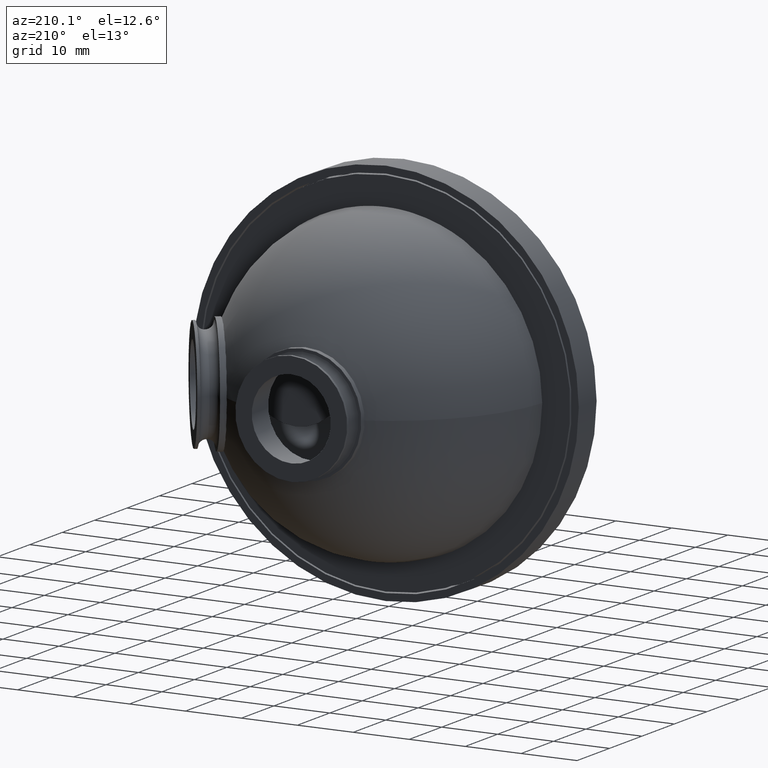
[diagram: clean part render]
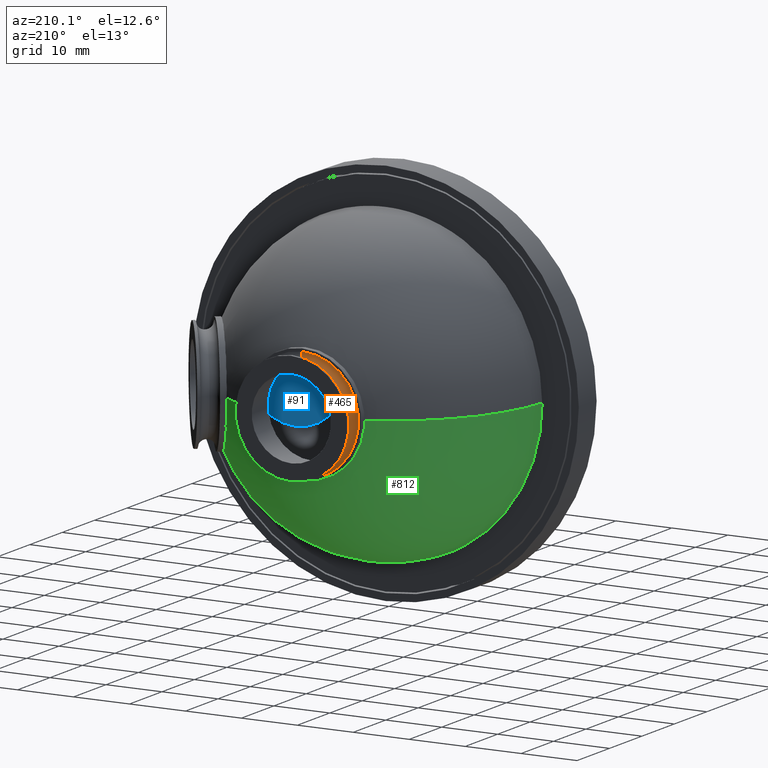
[diagram: same view with three faces highlighted in distinct colors, each labeled with its STEP entity id]
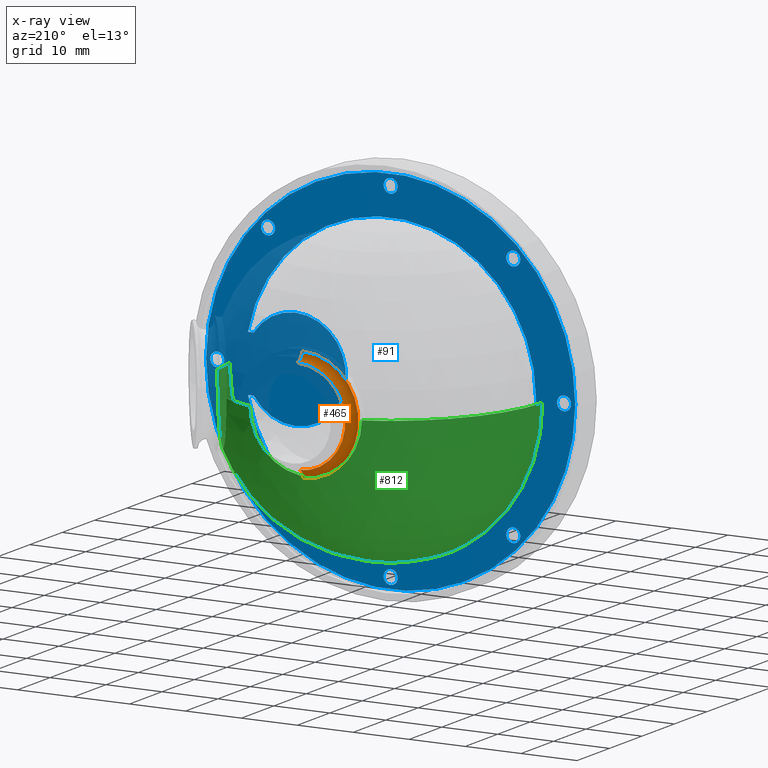
[diagram: x-ray of the same camera — body ghosted, the three highlighted faces saturated]
A machine part, auxiliary view with three faces highlighted in distinct colors.
The next image is the same camera in x-ray (body ghosted, the three faces saturated) — at least one of them is partly hidden behind the body in this view.
Their STEP definitions:

[orange] entity #465 — the highlighted toroidal blend (fillet) surface has major radius 10 mm and minor (blend) radius 1.5 mm.
#192 = VERTEX_POINT ( 'NONE', #2502 ) ;
#228 = VERTEX_POINT ( 'NONE', #3505 ) ;
#246 = DIRECTION ( 'NONE',  ( -0.009068317349353767487, 0.000000000000000000, -0.9999588819648792537 ) ) ;
#249 = CIRCLE ( 'NONE', #1227, 10.00000000000000000 ) ;
#340 = ORIENTED_EDGE ( 'NONE', *, *, #2190, .T. ) ;
#372 = DIRECTION ( 'NONE',  ( -0.009068317349354280965, -3.388295796307424955E-17, -0.9999588819648793647 ) ) ;
#465 = ADVANCED_FACE ( 'NONE', ( #1535 ), #2458, .F. ) ;
#701 = DIRECTION ( 'NONE',  ( 3.736410698672516088E-15, -1.000000000000000000, -1.067735561168283557E-29 ) ) ;
#707 = ORIENTED_EDGE ( 'NONE', *, *, #1647, .T. ) ;
#805 = VERTEX_POINT ( 'NONE', #1584 ) ;
#861 = CIRCLE ( 'NONE', #3348, 1.500000000000001998 ) ;
#1020 = CARTESIAN_POINT ( 'NONE',  ( 8.484018949608200799, 10.74252777405984460, -1.601603341752422533E-29 ) ) ;
#1028 = ORIENTED_EDGE ( 'NONE', *, *, #1835, .F. ) ;
#1134 = CARTESIAN_POINT ( 'NONE',  ( 8.484018949608207905, 9.242527774059841050, -3.203206683504850110E-29 ) ) ;
#1227 = AXIS2_PLACEMENT_3D ( 'NONE', #1134, #3404, #2288 ) ;
#1268 = DIRECTION ( 'NONE',  ( 1.000000000000000000, 3.673532066774416369E-15, 0.000000000000000000 ) ) ;
#1294 = ORIENTED_EDGE ( 'NONE', *, *, #3018, .F. ) ;
#1535 = FACE_OUTER_BOUND ( 'NONE', #1846, .T. ) ;
#1582 = DIRECTION ( 'NONE',  ( 0.009068317349353767487, 0.000000000000000000, 0.9999588819648792537 ) ) ;
#1584 = CARTESIAN_POINT ( 'NONE',  ( 8.406938252138688838, 10.74252777405984460, -8.499650496701471880 ) ) ;
#1610 = CARTESIAN_POINT ( 'NONE',  ( 8.484018949608200799, 10.74252777405984460, -1.601603341752422253E-29 ) ) ;
#1647 = EDGE_CURVE ( 'NONE', #3008, #805, #2695, .T. ) ;
#1781 = CIRCLE ( 'NONE', #1898, 1.500000000000001998 ) ;
#1835 = EDGE_CURVE ( 'NONE', #192, #228, #249, .T. ) ;
#1846 = EDGE_LOOP ( 'NONE', ( #340, #707, #1294, #1028 ) ) ;
#1885 = DIRECTION ( 'NONE',  ( -0.9999588819648794757, -3.736257064806183412E-15, 0.009068317349354218515 ) ) ;
#1898 = AXIS2_PLACEMENT_3D ( 'NONE', #2228, #2244, #246 ) ;
#2166 = CARTESIAN_POINT ( 'NONE',  ( 8.561099647077712760, 10.74252777405984460, 8.499650496701471880 ) ) ;
#2172 = DIRECTION ( 'NONE',  ( 3.736410698672516088E-15, -1.000000000000000000, -1.067735561168283557E-29 ) ) ;
#2190 = EDGE_CURVE ( 'NONE', #192, #3008, #1781, .T. ) ;
#2228 = CARTESIAN_POINT ( 'NONE',  ( 8.574702123101744178, 10.74252777405984460, 9.999588819648794313 ) ) ;
#2244 = DIRECTION ( 'NONE',  ( 0.9999588819648794757, 3.736257064806183412E-15, -0.009068317349354341680 ) ) ;
#2288 = DIRECTION ( 'NONE',  ( 0.009068317349354183821, 0.000000000000000000, 0.9999588819648794757 ) ) ;
#2331 = AXIS2_PLACEMENT_3D ( 'NONE', #1610, #701, #1268 ) ;
#2458 = TOROIDAL_SURFACE ( 'NONE', #2581, 10.00000000000000000, 1.500000000000002442 ) ;
#2502 = CARTESIAN_POINT ( 'NONE',  ( 8.574702123101749507, 9.242527774059841050, 9.999588819648794313 ) ) ;
#2581 = AXIS2_PLACEMENT_3D ( 'NONE', #1020, #2172, #372 ) ;
#2695 = CIRCLE ( 'NONE', #2331, 8.499999999999996447 ) ;
#3008 = VERTEX_POINT ( 'NONE', #2166 ) ;
#3018 = EDGE_CURVE ( 'NONE', #228, #805, #861, .T. ) ;
#3334 = CARTESIAN_POINT ( 'NONE',  ( 8.393335776114659197, 10.74252777405984460, -9.999588819648794313 ) ) ;
#3348 = AXIS2_PLACEMENT_3D ( 'NONE', #3334, #1885, #1582 ) ;
#3404 = DIRECTION ( 'NONE',  ( 3.736410698672516088E-15, -1.000000000000000000, -1.067735561168283557E-29 ) ) ;
#3505 = CARTESIAN_POINT ( 'NONE',  ( 8.393335776114664526, 9.242527774059841050, -9.999588819648794313 ) ) ;

[blue] entity #91 — the highlighted planar face has unit normal (0, 1, 0).
#20 = EDGE_CURVE ( 'NONE', #637, #2254, #3038, .T. ) ;
#24 = FACE_OUTER_BOUND ( 'NONE', #3511, .T. ) ;
#31 = VERTEX_POINT ( 'NONE', #2931 ) ;
#67 = CARTESIAN_POINT ( 'NONE',  ( -21.26598105039162689, -17.91086588718419392, -2.896232705858444703E-13 ) ) ;
#91 = ADVANCED_FACE ( 'NONE', ( #1489, #1769, #2870, #305, #264, #1430, #3759, #1145, #24, #905 ), #2296, .T. ) ;
#108 = AXIS2_PLACEMENT_3D ( 'NONE', #936, #1856, #665 ) ;
#119 = EDGE_CURVE ( 'NONE', #572, #1543, #1066, .T. ) ;
#161 = AXIS2_PLACEMENT_3D ( 'NONE', #3083, #2735, #3006 ) ;
#170 = AXIS2_PLACEMENT_3D ( 'NONE', #1386, #2253, #3409 ) ;
#195 = DIRECTION ( 'NONE',  ( 0.000000000000000000, 1.000000000000000000, 0.000000000000000000 ) ) ;
#232 = CARTESIAN_POINT ( 'NONE',  ( 7.234018949608225668, -17.91086588718419392, 30.99999999999994671 ) ) ;
#238 = CIRCLE ( 'NONE', #3043, 1.250000000000001110 ) ;
#264 = FACE_BOUND ( 'NONE', #2920, .T. ) ;
#276 = VERTEX_POINT ( 'NONE', #67 ) ;
#289 = EDGE_CURVE ( 'NONE', #276, #3544, #951, .T. ) ;
#303 = EDGE_CURVE ( 'NONE', #1450, #2607, #2824, .T. ) ;
#305 = FACE_BOUND ( 'NONE', #2463, .T. ) ;
#316 = CARTESIAN_POINT ( 'NONE',  ( 32.96733372315623001, -17.91086588718419392, 5.000000000000071942 ) ) ;
#326 = ORIENTED_EDGE ( 'NONE', *, *, #3719, .T. ) ;
#334 = EDGE_CURVE ( 'NONE', #1037, #1495, #3010, .T. ) ;
#347 = CIRCLE ( 'NONE', #161, 1.250000000000001110 ) ;
#393 = AXIS2_PLACEMENT_3D ( 'NONE', #2186, #3126, #1925 ) ;
#428 = VERTEX_POINT ( 'NONE', #1302 ) ;
#449 = CARTESIAN_POINT ( 'NONE',  ( -23.76598105039163045, -17.91086588718419392, -3.013746916115605945E-13 ) ) ;
#456 = AXIS2_PLACEMENT_3D ( 'NONE', #1502, #1463, #3197 ) ;
#489 = DIRECTION ( 'NONE',  ( 0.000000000000000000, 1.000000000000000000, 0.000000000000000000 ) ) ;
#491 = DIRECTION ( 'NONE',  ( 0.000000000000000000, 1.000000000000000000, 0.000000000000000000 ) ) ;
#502 = CIRCLE ( 'NONE', #1287, 1.250000000000001110 ) ;
#530 = EDGE_CURVE ( 'NONE', #950, #2516, #2952, .T. ) ;
#543 = CARTESIAN_POINT ( 'NONE',  ( -24.51598105039163045, -17.91086588718419392, -1.925768750327302926E-13 ) ) ;
#568 = EDGE_CURVE ( 'NONE', #2129, #1350, #897, .T. ) ;
#572 = VERTEX_POINT ( 'NONE', #232 ) ;
#596 = EDGE_LOOP ( 'NONE', ( #976, #2431 ) ) ;
#604 = CARTESIAN_POINT ( 'NONE',  ( 33.99872059395449497, -17.91086588718419392, 5.000000000000074607 ) ) ;
#608 = CARTESIAN_POINT ( 'NONE',  ( 30.40432916639163352, -17.91086588718419392, -21.92031021678273106 ) ) ;
#637 = VERTEX_POINT ( 'NONE', #3210 ) ;
#653 = CARTESIAN_POINT ( 'NONE',  ( 9.734018949608731930, -17.91086588718419392, -31.00000000000003908 ) ) ;
#665 = DIRECTION ( 'NONE',  ( -1.000000000000000000, 0.000000000000000000, -5.551115123125777969E-15 ) ) ;
#668 = VERTEX_POINT ( 'NONE', #604 ) ;
#691 = ORIENTED_EDGE ( 'NONE', *, *, #2821, .F. ) ;
#766 = EDGE_CURVE ( 'NONE', #3493, #2532, #814, .T. ) ;
#799 = DIRECTION ( 'NONE',  ( -1.000000000000000000, 0.000000000000000000, -5.551115123125777969E-15 ) ) ;
#800 = CARTESIAN_POINT ( 'NONE',  ( -14.68629126717439171, -17.91086588718419392, -21.92031021678324265 ) ) ;
#811 = EDGE_LOOP ( 'NONE', ( #1466, #3522 ) ) ;
#814 = CIRCLE ( 'NONE', #1291, 1.250000000000001110 ) ;
#862 = ORIENTED_EDGE ( 'NONE', *, *, #289, .F. ) ;
#863 = DIRECTION ( 'NONE',  ( -1.000000000000000000, 0.000000000000000000, -4.639336070329089976E-15 ) ) ;
#879 = DIRECTION ( 'NONE',  ( -4.625929269271485322E-15, 0.000000000000000000, 1.000000000000000000 ) ) ;
#897 = CIRCLE ( 'NONE', #2275, 1.250000000000001110 ) ;
#905 = FACE_BOUND ( 'NONE', #2951, .T. ) ;
#915 = CIRCLE ( 'NONE', #2360, 1.250000000000001110 ) ;
#936 = CARTESIAN_POINT ( 'NONE',  ( 30.40432916639163352, -17.91086588718419392, -21.92031021678273106 ) ) ;
#940 = ORIENTED_EDGE ( 'NONE', *, *, #2483, .F. ) ;
#950 = VERTEX_POINT ( 'NONE', #1926 ) ;
#951 = CIRCLE ( 'NONE', #456, 1.250000000000001110 ) ;
#975 = EDGE_CURVE ( 'NONE', #2532, #3493, #502, .T. ) ;
#976 = ORIENTED_EDGE ( 'NONE', *, *, #3157, .F. ) ;
#1037 = VERTEX_POINT ( 'NONE', #3184 ) ;
#1051 = DIRECTION ( 'NONE',  ( 0.000000000000000000, 1.000000000000000000, 0.000000000000000000 ) ) ;
#1066 = CIRCLE ( 'NONE', #1671, 1.250000000000001110 ) ;
#1075 = EDGE_LOOP ( 'NONE', ( #2652, #1562 ) ) ;
#1145 = FACE_BOUND ( 'NONE', #2753, .T. ) ;
#1167 = EDGE_CURVE ( 'NONE', #1350, #2129, #347, .T. ) ;
#1183 = AXIS2_PLACEMENT_3D ( 'NONE', #1764, #2623, #2085 ) ;
#1211 = AXIS2_PLACEMENT_3D ( 'NONE', #3003, #2659, #1559 ) ;
#1266 = CIRCLE ( 'NONE', #108, 1.250000000000001110 ) ;
#1287 = AXIS2_PLACEMENT_3D ( 'NONE', #2549, #1319, #2187 ) ;
#1291 = AXIS2_PLACEMENT_3D ( 'NONE', #2904, #3500, #2046 ) ;
#1293 = CARTESIAN_POINT ( 'NONE',  ( 32.96733372315628685, -17.91086588718419392, -4.999999999999928058 ) ) ;
#1302 = CARTESIAN_POINT ( 'NONE',  ( 31.65432916639097982, -17.91086588718419392, 21.92031021678329594 ) ) ;
#1311 = LINE ( 'NONE', #1293, #1377 ) ;
#1317 = EDGE_CURVE ( 'NONE', #1495, #668, #1954, .T. ) ;
#1319 = DIRECTION ( 'NONE',  ( 0.000000000000000000, 1.000000000000000000, 0.000000000000000000 ) ) ;
#1350 = VERTEX_POINT ( 'NONE', #800 ) ;
#1377 = VECTOR ( 'NONE', #2095, 1000.000000000000000 ) ;
#1381 = CARTESIAN_POINT ( 'NONE',  ( 41.48401894960837666, -17.91086588718419392, 1.095779711718033954E-13 ) ) ;
#1386 = CARTESIAN_POINT ( 'NONE',  ( 39.48401894960837666, -17.91086588718419392, 4.250072516143177381E-13 ) ) ;
#1392 = CARTESIAN_POINT ( 'NONE',  ( -12.18629126717438815, -17.91086588718419392, -21.92031021678322844 ) ) ;
#1398 = ORIENTED_EDGE ( 'NONE', *, *, #334, .T. ) ;
#1430 = FACE_BOUND ( 'NONE', #3430, .T. ) ;
#1446 = CARTESIAN_POINT ( 'NONE',  ( 32.96733372315623001, -17.91086588718419392, 5.000000000000071942 ) ) ;
#1449 = EDGE_CURVE ( 'NONE', #2516, #950, #2880, .T. ) ;
#1450 = VERTEX_POINT ( 'NONE', #2965 ) ;
#1463 = DIRECTION ( 'NONE',  ( 0.000000000000000000, 1.000000000000000000, 0.000000000000000000 ) ) ;
#1466 = ORIENTED_EDGE ( 'NONE', *, *, #3294, .F. ) ;
#1489 = FACE_BOUND ( 'NONE', #596, .T. ) ;
#1491 = CIRCLE ( 'NONE', #3248, 26.00000000000000355 ) ;
#1495 = VERTEX_POINT ( 'NONE', #316 ) ;
#1502 = CARTESIAN_POINT ( 'NONE',  ( -22.51598105039163045, -17.91086588718419392, -2.955755215236492071E-13 ) ) ;
#1543 = VERTEX_POINT ( 'NONE', #2102 ) ;
#1559 = DIRECTION ( 'NONE',  ( -1.000000000000000000, 0.000000000000000000, -5.551115123125777969E-15 ) ) ;
#1561 = ORIENTED_EDGE ( 'NONE', *, *, #1317, .T. ) ;
#1562 = ORIENTED_EDGE ( 'NONE', *, *, #1449, .F. ) ;
#1612 = DIRECTION ( 'NONE',  ( -1.000000000000000000, 0.000000000000000000, -4.639336070329089976E-15 ) ) ;
#1646 = DIRECTION ( 'NONE',  ( -1.000000000000000000, 0.000000000000000000, -4.639336070329089976E-15 ) ) ;
#1657 = CIRCLE ( 'NONE', #2960, 1.250000000000001110 ) ;
#1661 = DIRECTION ( 'NONE',  ( -1.000000000000000000, 0.000000000000000000, -4.639336070329089187E-15 ) ) ;
#1671 = AXIS2_PLACEMENT_3D ( 'NONE', #1989, #2010, #799 ) ;
#1687 = DIRECTION ( 'NONE',  ( 1.000000000000000000, 0.000000000000000000, 4.639336070329089976E-15 ) ) ;
#1764 = CARTESIAN_POINT ( 'NONE',  ( -13.43629126717474342, -17.91086588718419392, 21.92031021678278790 ) ) ;
#1769 = FACE_BOUND ( 'NONE', #1834, .T. ) ;
#1834 = EDGE_LOOP ( 'NONE', ( #2421, #3476 ) ) ;
#1856 = DIRECTION ( 'NONE',  ( 0.000000000000000000, 1.000000000000000000, 0.000000000000000000 ) ) ;
#1894 = CARTESIAN_POINT ( 'NONE',  ( 8.484018949608371329, -17.91086588718419392, -4.352011914905657226E-14 ) ) ;
#1913 = CARTESIAN_POINT ( 'NONE',  ( 7.234018949608730153, -17.91086588718419392, -31.00000000000005329 ) ) ;
#1925 = DIRECTION ( 'NONE',  ( -1.000000000000000000, 0.000000000000000000, -4.639336070329089976E-15 ) ) ;
#1926 = CARTESIAN_POINT ( 'NONE',  ( -14.68629126717474520, -17.91086588718419392, 21.92031021678278080 ) ) ;
#1954 = LINE ( 'NONE', #1446, #2108 ) ;
#1989 = CARTESIAN_POINT ( 'NONE',  ( 8.484018949608225668, -17.91086588718419392, 30.99999999999995381 ) ) ;
#2010 = DIRECTION ( 'NONE',  ( 0.000000000000000000, 1.000000000000000000, 0.000000000000000000 ) ) ;
#2046 = DIRECTION ( 'NONE',  ( -1.000000000000000000, 0.000000000000000000, -5.551115123125777969E-15 ) ) ;
#2054 = DIRECTION ( 'NONE',  ( 0.000000000000000000, 1.000000000000000000, 0.000000000000000000 ) ) ;
#2056 = CARTESIAN_POINT ( 'NONE',  ( 8.484018949608371329, -17.91086588718419392, -4.352011914905657226E-14 ) ) ;
#2068 = DIRECTION ( 'NONE',  ( 0.000000000000000000, 1.000000000000000000, 0.000000000000000000 ) ) ;
#2085 = DIRECTION ( 'NONE',  ( -1.000000000000000000, 0.000000000000000000, -5.551115123125777969E-15 ) ) ;
#2095 = DIRECTION ( 'NONE',  ( 1.000000000000000000, 0.000000000000000000, 4.639336070329089976E-15 ) ) ;
#2102 = CARTESIAN_POINT ( 'NONE',  ( 9.734018949608227445, -17.91086588718419392, 30.99999999999996092 ) ) ;
#2108 = VECTOR ( 'NONE', #1687, 1000.000000000000000 ) ;
#2129 = VERTEX_POINT ( 'NONE', #1392 ) ;
#2186 = CARTESIAN_POINT ( 'NONE',  ( 8.484018949608371329, -17.91086588718419392, -4.352011914905657226E-14 ) ) ;
#2187 = DIRECTION ( 'NONE',  ( -1.000000000000000000, 0.000000000000000000, -5.551115123125777969E-15 ) ) ;
#2200 = DIRECTION ( 'NONE',  ( -1.000000000000000000, 0.000000000000000000, -4.639336070329089187E-15 ) ) ;
#2232 = CARTESIAN_POINT ( 'NONE',  ( -13.43629126717438993, -17.91086588718419392, -21.92031021678323555 ) ) ;
#2247 = DIRECTION ( 'NONE',  ( -1.000000000000000000, 0.000000000000000000, -5.551115123125777969E-15 ) ) ;
#2253 = DIRECTION ( 'NONE',  ( 0.000000000000000000, 1.000000000000000000, 0.000000000000000000 ) ) ;
#2254 = VERTEX_POINT ( 'NONE', #2799 ) ;
#2275 = AXIS2_PLACEMENT_3D ( 'NONE', #2232, #195, #2857 ) ;
#2296 = PLANE ( 'NONE',  #3159 ) ;
#2300 = DIRECTION ( 'NONE',  ( -1.000000000000000000, 0.000000000000000000, -5.551115123125777969E-15 ) ) ;
#2304 = EDGE_CURVE ( 'NONE', #428, #31, #1657, .T. ) ;
#2344 = AXIS2_PLACEMENT_3D ( 'NONE', #2840, #489, #2247 ) ;
#2360 = AXIS2_PLACEMENT_3D ( 'NONE', #3110, #2901, #1661 ) ;
#2365 = AXIS2_PLACEMENT_3D ( 'NONE', #2794, #1051, #2200 ) ;
#2368 = ORIENTED_EDGE ( 'NONE', *, *, #3346, .F. ) ;
#2370 = DIRECTION ( 'NONE',  ( -1.000000000000000000, 0.000000000000000000, -5.551115123125777969E-15 ) ) ;
#2421 = ORIENTED_EDGE ( 'NONE', *, *, #2622, .F. ) ;
#2431 = ORIENTED_EDGE ( 'NONE', *, *, #2304, .F. ) ;
#2463 = EDGE_LOOP ( 'NONE', ( #3330, #3145 ) ) ;
#2483 = EDGE_CURVE ( 'NONE', #1037, #3087, #1311, .T. ) ;
#2516 = VERTEX_POINT ( 'NONE', #3587 ) ;
#2520 = AXIS2_PLACEMENT_3D ( 'NONE', #3540, #2068, #879 ) ;
#2532 = VERTEX_POINT ( 'NONE', #653 ) ;
#2549 = CARTESIAN_POINT ( 'NONE',  ( 8.484018949608731930, -17.91086588718419392, -31.00000000000004619 ) ) ;
#2580 = ORIENTED_EDGE ( 'NONE', *, *, #3472, .T. ) ;
#2607 = VERTEX_POINT ( 'NONE', #3700 ) ;
#2622 = EDGE_CURVE ( 'NONE', #2254, #637, #3772, .T. ) ;
#2623 = DIRECTION ( 'NONE',  ( 0.000000000000000000, 1.000000000000000000, 0.000000000000000000 ) ) ;
#2652 = ORIENTED_EDGE ( 'NONE', *, *, #530, .F. ) ;
#2659 = DIRECTION ( 'NONE',  ( 0.000000000000000000, 1.000000000000000000, 0.000000000000000000 ) ) ;
#2726 = CIRCLE ( 'NONE', #1211, 1.250000000000001110 ) ;
#2735 = DIRECTION ( 'NONE',  ( 0.000000000000000000, 1.000000000000000000, 0.000000000000000000 ) ) ;
#2753 = EDGE_LOOP ( 'NONE', ( #3656, #2368 ) ) ;
#2794 = CARTESIAN_POINT ( 'NONE',  ( 39.48401894960837666, -17.91086588718419392, 4.250072516143177381E-13 ) ) ;
#2799 = CARTESIAN_POINT ( 'NONE',  ( 38.23401894960836955, -17.91086588718419392, 4.192080815264063508E-13 ) ) ;
#2812 = VERTEX_POINT ( 'NONE', #543 ) ;
#2821 = EDGE_CURVE ( 'NONE', #3544, #276, #915, .T. ) ;
#2824 = CIRCLE ( 'NONE', #3317, 1.250000000000001110 ) ;
#2840 = CARTESIAN_POINT ( 'NONE',  ( -13.43629126717474342, -17.91086588718419392, 21.92031021678278790 ) ) ;
#2857 = DIRECTION ( 'NONE',  ( -1.000000000000000000, 0.000000000000000000, -5.551115123125777969E-15 ) ) ;
#2870 = FACE_BOUND ( 'NONE', #811, .T. ) ;
#2877 = CARTESIAN_POINT ( 'NONE',  ( 30.40432916639097627, -17.91086588718419392, 21.92031021678328884 ) ) ;
#2880 = CIRCLE ( 'NONE', #1183, 1.250000000000001110 ) ;
#2892 = CARTESIAN_POINT ( 'NONE',  ( 30.40432916639097627, -17.91086588718419392, 21.92031021678328884 ) ) ;
#2901 = DIRECTION ( 'NONE',  ( 0.000000000000000000, 1.000000000000000000, 0.000000000000000000 ) ) ;
#2904 = CARTESIAN_POINT ( 'NONE',  ( 8.484018949608731930, -17.91086588718419392, -31.00000000000004619 ) ) ;
#2910 = DIRECTION ( 'NONE',  ( -1.000000000000000000, 0.000000000000000000, -5.551115123125777969E-15 ) ) ;
#2920 = EDGE_LOOP ( 'NONE', ( #3188, #3319 ) ) ;
#2925 = DIRECTION ( 'NONE',  ( 0.000000000000000000, 1.000000000000000000, 0.000000000000000000 ) ) ;
#2931 = CARTESIAN_POINT ( 'NONE',  ( 29.15432916639097272, -17.91086588718419392, 21.92031021678328173 ) ) ;
#2951 = EDGE_LOOP ( 'NONE', ( #1561, #3064, #940, #1398 ) ) ;
#2952 = CIRCLE ( 'NONE', #2344, 1.250000000000001110 ) ;
#2960 = AXIS2_PLACEMENT_3D ( 'NONE', #2877, #3547, #2300 ) ;
#2965 = CARTESIAN_POINT ( 'NONE',  ( 31.65432916639162997, -17.91086588718419392, -21.92031021678272396 ) ) ;
#3003 = CARTESIAN_POINT ( 'NONE',  ( 8.484018949608225668, -17.91086588718419392, 30.99999999999995381 ) ) ;
#3006 = DIRECTION ( 'NONE',  ( -1.000000000000000000, 0.000000000000000000, -5.551115123125777969E-15 ) ) ;
#3010 = CIRCLE ( 'NONE', #2520, 9.000000000000000000 ) ;
#3038 = CIRCLE ( 'NONE', #2365, 1.250000000000001110 ) ;
#3043 = AXIS2_PLACEMENT_3D ( 'NONE', #2892, #2054, #2910 ) ;
#3049 = CARTESIAN_POINT ( 'NONE',  ( 33.99872059395455182, -17.91086588718419392, -4.999999999999924505 ) ) ;
#3064 = ORIENTED_EDGE ( 'NONE', *, *, #3568, .F. ) ;
#3082 = DIRECTION ( 'NONE',  ( 0.000000000000000000, 1.000000000000000000, 0.000000000000000000 ) ) ;
#3083 = CARTESIAN_POINT ( 'NONE',  ( -13.43629126717438993, -17.91086588718419392, -21.92031021678323555 ) ) ;
#3087 = VERTEX_POINT ( 'NONE', #3049 ) ;
#3097 = CARTESIAN_POINT ( 'NONE',  ( 8.484018949608371329, -17.91086588718419392, -4.352011914905657226E-14 ) ) ;
#3110 = CARTESIAN_POINT ( 'NONE',  ( -22.51598105039163045, -17.91086588718419392, -2.955755215236492071E-13 ) ) ;
#3126 = DIRECTION ( 'NONE',  ( 0.000000000000000000, 1.000000000000000000, 0.000000000000000000 ) ) ;
#3129 = AXIS2_PLACEMENT_3D ( 'NONE', #1894, #3082, #1612 ) ;
#3145 = ORIENTED_EDGE ( 'NONE', *, *, #975, .F. ) ;
#3157 = EDGE_CURVE ( 'NONE', #31, #428, #238, .T. ) ;
#3159 = AXIS2_PLACEMENT_3D ( 'NONE', #2056, #3470, #863 ) ;
#3184 = CARTESIAN_POINT ( 'NONE',  ( 32.96733372315628685, -17.91086588718419392, -4.999999999999928058 ) ) ;
#3188 = ORIENTED_EDGE ( 'NONE', *, *, #1167, .F. ) ;
#3197 = DIRECTION ( 'NONE',  ( -1.000000000000000000, 0.000000000000000000, -4.639336070329089187E-15 ) ) ;
#3210 = CARTESIAN_POINT ( 'NONE',  ( 40.73401894960837666, -17.91086588718419392, 4.309595025521225255E-13 ) ) ;
#3248 = AXIS2_PLACEMENT_3D ( 'NONE', #3097, #491, #1646 ) ;
#3294 = EDGE_CURVE ( 'NONE', #2607, #1450, #1266, .T. ) ;
#3317 = AXIS2_PLACEMENT_3D ( 'NONE', #608, #2925, #2370 ) ;
#3319 = ORIENTED_EDGE ( 'NONE', *, *, #568, .F. ) ;
#3330 = ORIENTED_EDGE ( 'NONE', *, *, #766, .F. ) ;
#3346 = EDGE_CURVE ( 'NONE', #1543, #572, #2726, .T. ) ;
#3401 = CIRCLE ( 'NONE', #3129, 33.00000000000000000 ) ;
#3409 = DIRECTION ( 'NONE',  ( -1.000000000000000000, 0.000000000000000000, -4.639336070329089187E-15 ) ) ;
#3430 = EDGE_LOOP ( 'NONE', ( #691, #862 ) ) ;
#3470 = DIRECTION ( 'NONE',  ( 0.000000000000000000, 1.000000000000000000, 0.000000000000000000 ) ) ;
#3472 = EDGE_CURVE ( 'NONE', #2812, #3570, #3401, .T. ) ;
#3476 = ORIENTED_EDGE ( 'NONE', *, *, #20, .F. ) ;
#3493 = VERTEX_POINT ( 'NONE', #1913 ) ;
#3500 = DIRECTION ( 'NONE',  ( 0.000000000000000000, 1.000000000000000000, 0.000000000000000000 ) ) ;
#3511 = EDGE_LOOP ( 'NONE', ( #326, #2580 ) ) ;
#3522 = ORIENTED_EDGE ( 'NONE', *, *, #303, .F. ) ;
#3540 = CARTESIAN_POINT ( 'NONE',  ( 25.48401894960837311, -17.91086588718419392, 3.534859404653798100E-14 ) ) ;
#3544 = VERTEX_POINT ( 'NONE', #449 ) ;
#3547 = DIRECTION ( 'NONE',  ( 0.000000000000000000, 1.000000000000000000, 0.000000000000000000 ) ) ;
#3568 = EDGE_CURVE ( 'NONE', #3087, #668, #1491, .T. ) ;
#3570 = VERTEX_POINT ( 'NONE', #1381 ) ;
#3587 = CARTESIAN_POINT ( 'NONE',  ( -12.18629126717474165, -17.91086588718419392, 21.92031021678279501 ) ) ;
#3656 = ORIENTED_EDGE ( 'NONE', *, *, #119, .F. ) ;
#3678 = CIRCLE ( 'NONE', #393, 33.00000000000000000 ) ;
#3700 = CARTESIAN_POINT ( 'NONE',  ( 29.15432916639163352, -17.91086588718419392, -21.92031021678273817 ) ) ;
#3719 = EDGE_CURVE ( 'NONE', #3570, #2812, #3678, .T. ) ;
#3759 = FACE_BOUND ( 'NONE', #1075, .T. ) ;
#3772 = CIRCLE ( 'NONE', #170, 1.250000000000001110 ) ;

[green] entity #812 — the highlighted spherical surface has radius 28 mm.
#88 = AXIS2_PLACEMENT_3D ( 'NONE', #1421, #1138, #3175 ) ;
#98 = VERTEX_POINT ( 'NONE', #200 ) ;
#151 = AXIS2_PLACEMENT_3D ( 'NONE', #1283, #3613, #2767 ) ;
#182 = EDGE_CURVE ( 'NONE', #98, #3680, #2889, .T. ) ;
#200 = CARTESIAN_POINT ( 'NONE',  ( 35.75809397930994038, -11.57644947569009020, 0.000000000000000000 ) ) ;
#253 = VERTEX_POINT ( 'NONE', #279 ) ;
#279 = CARTESIAN_POINT ( 'NONE',  ( -1.515981050391789209, 8.242527774059805523, 2.324366922747028344E-15 ) ) ;
#318 = CIRCLE ( 'NONE', #2137, 27.95979256003163016 ) ;
#381 = AXIS2_PLACEMENT_3D ( 'NONE', #732, #2381, #426 ) ;
#426 = DIRECTION ( 'NONE',  ( 1.000000000000000000, 0.000000000000000000, 0.000000000000000000 ) ) ;
#429 = AXIS2_PLACEMENT_3D ( 'NONE', #2201, #1902, #2454 ) ;
#453 = EDGE_CURVE ( 'NONE', #3026, #1844, #1915, .T. ) ;
#564 = DIRECTION ( 'NONE',  ( 1.224646799147353207E-16, -0.000000000000000000, 1.000000000000000000 ) ) ;
#600 = ORIENTED_EDGE ( 'NONE', *, *, #182, .T. ) ;
#639 = DIRECTION ( 'NONE',  ( -0.000000000000000000, 1.000000000000000000, -0.000000000000000000 ) ) ;
#681 = EDGE_CURVE ( 'NONE', #3680, #1388, #318, .T. ) ;
#693 = SPHERICAL_SURFACE ( 'NONE', #381, 28.00000000000000000 ) ;
#732 = CARTESIAN_POINT ( 'NONE',  ( 8.484018949608307381, -17.91086588718419748, 0.000000000000000000 ) ) ;
#735 = CIRCLE ( 'NONE', #429, 9.999999999999998224 ) ;
#812 = ADVANCED_FACE ( 'NONE', ( #1263 ), #693, .T. ) ;
#1049 = EDGE_CURVE ( 'NONE', #98, #1844, #2495, .T. ) ;
#1080 = CARTESIAN_POINT ( 'NONE',  ( 24.57423590989497697, 5.004301975410723635, 0.000000000000000000 ) ) ;
#1124 = ORIENTED_EDGE ( 'NONE', *, *, #3077, .T. ) ;
#1126 = CARTESIAN_POINT ( 'NONE',  ( 30.16616494460246045, -3.286073750139683280, 0.000000000000000000 ) ) ;
#1138 = DIRECTION ( 'NONE',  ( 0.000000000000000000, 0.000000000000000000, -1.000000000000000000 ) ) ;
#1154 = CARTESIAN_POINT ( 'NONE',  ( 8.484018949608307381, -16.41086588718419748, 0.000000000000000000 ) ) ;
#1166 = ORIENTED_EDGE ( 'NONE', *, *, #1049, .F. ) ;
#1262 = ORIENTED_EDGE ( 'NONE', *, *, #453, .T. ) ;
#1263 = FACE_OUTER_BOUND ( 'NONE', #2646, .T. ) ;
#1283 = CARTESIAN_POINT ( 'NONE',  ( 8.484018949608307381, -17.91086588718419748, 0.000000000000000000 ) ) ;
#1388 = VERTEX_POINT ( 'NONE', #1707 ) ;
#1421 = CARTESIAN_POINT ( 'NONE',  ( 8.484018949608307381, -17.91086588718419748, 0.000000000000000000 ) ) ;
#1472 = AXIS2_PLACEMENT_3D ( 'NONE', #1126, #1842, #3454 ) ;
#1588 = AXIS2_PLACEMENT_3D ( 'NONE', #1702, #564, #3441 ) ;
#1702 = CARTESIAN_POINT ( 'NONE',  ( 8.484018949608307381, -17.91086588718419748, 0.000000000000000000 ) ) ;
#1707 = CARTESIAN_POINT ( 'NONE',  ( -19.47577361042331745, -16.41086588718419748, 3.424087046346671680E-15 ) ) ;
#1816 = EDGE_CURVE ( 'NONE', #253, #1388, #1892, .T. ) ;
#1842 = DIRECTION ( 'NONE',  ( 0.8290375725550408470, 0.5591929034707481261, 0.000000000000000000 ) ) ;
#1844 = VERTEX_POINT ( 'NONE', #1080 ) ;
#1892 = CIRCLE ( 'NONE', #1588, 28.00000000000000000 ) ;
#1902 = DIRECTION ( 'NONE',  ( 3.736410698672603652E-15, -1.000000000000000000, -0.000000000000000000 ) ) ;
#1915 = CIRCLE ( 'NONE', #151, 28.00000000000000000 ) ;
#2024 = DIRECTION ( 'NONE',  ( 0.000000000000000000, 0.000000000000000000, -1.000000000000000000 ) ) ;
#2137 = AXIS2_PLACEMENT_3D ( 'NONE', #1154, #639, #2024 ) ;
#2201 = CARTESIAN_POINT ( 'NONE',  ( 8.484018949608211457, 8.242527774059842827, 0.000000000000000000 ) ) ;
#2381 = DIRECTION ( 'NONE',  ( 0.000000000000000000, 0.000000000000000000, 1.000000000000000000 ) ) ;
#2417 = ORIENTED_EDGE ( 'NONE', *, *, #681, .T. ) ;
#2454 = DIRECTION ( 'NONE',  ( 1.000000000000000000, 3.816391647148976397E-15, 0.000000000000000000 ) ) ;
#2495 = CIRCLE ( 'NONE', #1472, 10.00000000000000000 ) ;
#2510 = ORIENTED_EDGE ( 'NONE', *, *, #1816, .F. ) ;
#2646 = EDGE_LOOP ( 'NONE', ( #2510, #1124, #1262, #1166, #600, #2417 ) ) ;
#2767 = DIRECTION ( 'NONE',  ( -1.000000000000000000, 0.000000000000000000, 0.000000000000000000 ) ) ;
#2889 = CIRCLE ( 'NONE', #88, 28.00000000000000000 ) ;
#3026 = VERTEX_POINT ( 'NONE', #3644 ) ;
#3077 = EDGE_CURVE ( 'NONE', #253, #3026, #735, .T. ) ;
#3175 = DIRECTION ( 'NONE',  ( -1.000000000000000000, 0.000000000000000000, 0.000000000000000000 ) ) ;
#3441 = DIRECTION ( 'NONE',  ( 1.000000000000000000, 0.000000000000000000, -1.224646799147353207E-16 ) ) ;
#3454 = DIRECTION ( 'NONE',  ( 0.5591929034707482371, -0.8290375725550406250, 0.000000000000000000 ) ) ;
#3461 = CARTESIAN_POINT ( 'NONE',  ( 36.44381150963993576, -16.41086588718419748, 0.000000000000000000 ) ) ;
#3613 = DIRECTION ( 'NONE',  ( 0.000000000000000000, 0.000000000000000000, -1.000000000000000000 ) ) ;
#3644 = CARTESIAN_POINT ( 'NONE',  ( 18.48401894960820968, 8.242527774059881907, 0.000000000000000000 ) ) ;
#3680 = VERTEX_POINT ( 'NONE', #3461 ) ;